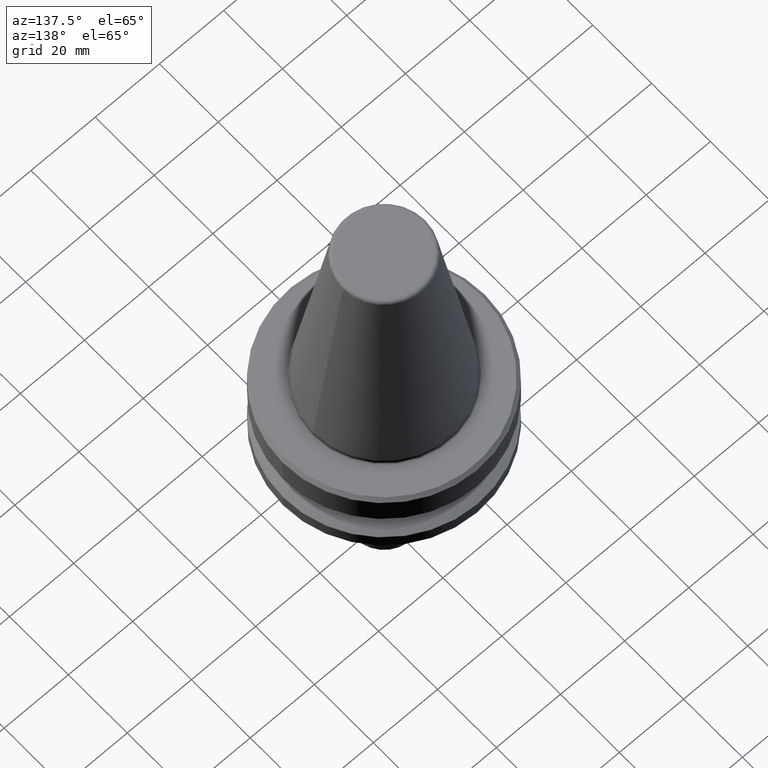
[diagram: clean part render]
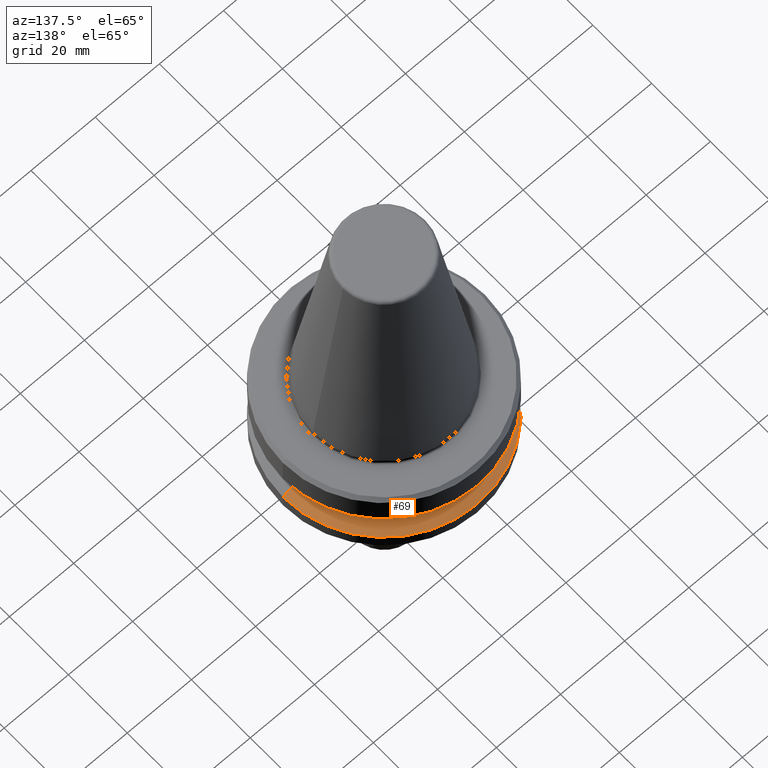
[diagram: same view with one face highlighted and labeled with its STEP entity id]
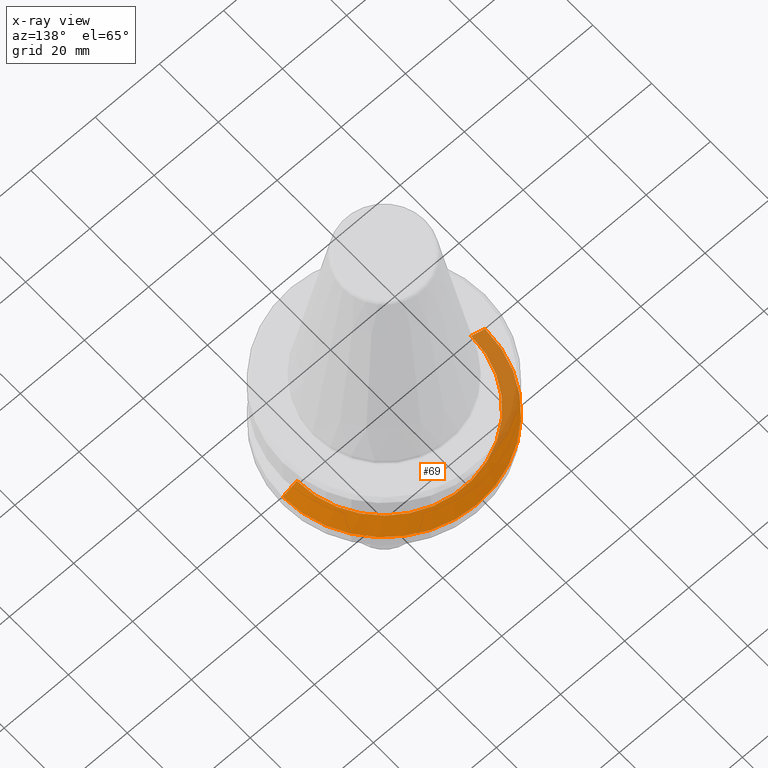
[diagram: x-ray of the same camera — body ghosted, the highlighted face saturated]
A machine part, auxiliary view. The second image highlights one B-rep face of the part: STEP entity #69.
The next image is the same camera in x-ray: the body ghosted, the highlighted face saturated — about 24% of this face is hidden behind the body in this view.
In plain terms, the highlighted conical surface has half-angle 60 deg.
Its self-contained STEP definition (entity closure, byte-faithful):
#34 = CARTESIAN_POINT ( 'NONE',  ( -27.16962701892256100, 0.0000000000000000000, -84.50000000000068200 ) ) ;
#41 = DIRECTION ( 'NONE',  ( -0.8660254037844332700, 0.0000000000000000000, -0.5000000000000093300 ) ) ;
#61 = AXIS2_PLACEMENT_3D ( 'NONE', #370, #767, #415 ) ;
#64 = ORIENTED_EDGE ( 'NONE', *, *, #612, .T. ) ;
#69 = ADVANCED_FACE ( 'NONE', ( #968 ), #697, .T. ) ;
#138 = LINE ( 'NONE', #437, #538 ) ;
#184 = CARTESIAN_POINT ( 'NONE',  ( 31.50000000000008500, 0.0000000000000000000, -87.00014200631733300 ) ) ;
#195 = VERTEX_POINT ( 'NONE', #184 ) ;
#284 = AXIS2_PLACEMENT_3D ( 'NONE', #351, #809, #974 ) ;
#299 = VECTOR ( 'NONE', #41, 1000.000000000000000 ) ;
#302 = ORIENTED_EDGE ( 'NONE', *, *, #900, .T. ) ;
#327 = VERTEX_POINT ( 'NONE', #394 ) ;
#347 = ORIENTED_EDGE ( 'NONE', *, *, #652, .F. ) ;
#351 = CARTESIAN_POINT ( 'NONE',  ( 0.0000000000000000000, 0.0000000000000000000, -84.50000000000068200 ) ) ;
#370 = CARTESIAN_POINT ( 'NONE',  ( 0.0000000000000000000, 0.0000000000000000000, -87.00014200631733300 ) ) ;
#394 = CARTESIAN_POINT ( 'NONE',  ( -31.50000000000008500, 3.857637417314172900E-015, -87.00014200631733300 ) ) ;
#415 = DIRECTION ( 'NONE',  ( 1.000000000000000000, 0.0000000000000000000, 0.0000000000000000000 ) ) ;
#437 = CARTESIAN_POINT ( 'NONE',  ( 31.50000000000008500, 3.857637417314172900E-015, -87.00014200631733300 ) ) ;
#439 = CARTESIAN_POINT ( 'NONE',  ( -31.50000000000008500, 0.0000000000000000000, -87.00014200631733300 ) ) ;
#447 = ORIENTED_EDGE ( 'NONE', *, *, #651, .F. ) ;
#510 = DIRECTION ( 'NONE',  ( -1.000000000000000000, 0.0000000000000000000, 0.0000000000000000000 ) ) ;
#516 = CARTESIAN_POINT ( 'NONE',  ( 0.0000000000000000000, 0.0000000000000000000, -87.00014200631733300 ) ) ;
#538 = VECTOR ( 'NONE', #672, 1000.000000000000000 ) ;
#612 = EDGE_CURVE ( 'NONE', #195, #327, #964, .T. ) ;
#651 = EDGE_CURVE ( 'NONE', #716, #869, #737, .T. ) ;
#652 = EDGE_CURVE ( 'NONE', #869, #327, #722, .T. ) ;
#672 = DIRECTION ( 'NONE',  ( 0.8660254037844332700, 1.060575238724900300E-016, -0.5000000000000093300 ) ) ;
#697 = CONICAL_SURFACE ( 'NONE', #903, 31.50000000000008500, 1.047197551196587000 ) ;
#702 = CARTESIAN_POINT ( 'NONE',  ( 27.16962701892256100, 3.592478546794633900E-015, -84.50000000000068200 ) ) ;
#716 = VERTEX_POINT ( 'NONE', #702 ) ;
#722 = LINE ( 'NONE', #439, #299 ) ;
#734 = EDGE_LOOP ( 'NONE', ( #447, #302, #64, #347 ) ) ;
#737 = CIRCLE ( 'NONE', #284, 27.16962701892256100 ) ;
#767 = DIRECTION ( 'NONE',  ( -0.0000000000000000000, -0.0000000000000000000, 1.000000000000000000 ) ) ;
#809 = DIRECTION ( 'NONE',  ( -0.0000000000000000000, -0.0000000000000000000, 1.000000000000000000 ) ) ;
#869 = VERTEX_POINT ( 'NONE', #34 ) ;
#877 = DIRECTION ( 'NONE',  ( 0.0000000000000000000, 0.0000000000000000000, -1.000000000000000000 ) ) ;
#900 = EDGE_CURVE ( 'NONE', #716, #195, #138, .T. ) ;
#903 = AXIS2_PLACEMENT_3D ( 'NONE', #516, #877, #510 ) ;
#964 = CIRCLE ( 'NONE', #61, 31.50000000000008500 ) ;
#968 = FACE_OUTER_BOUND ( 'NONE', #734, .T. ) ;
#974 = DIRECTION ( 'NONE',  ( 1.000000000000000000, 0.0000000000000000000, 0.0000000000000000000 ) ) ;